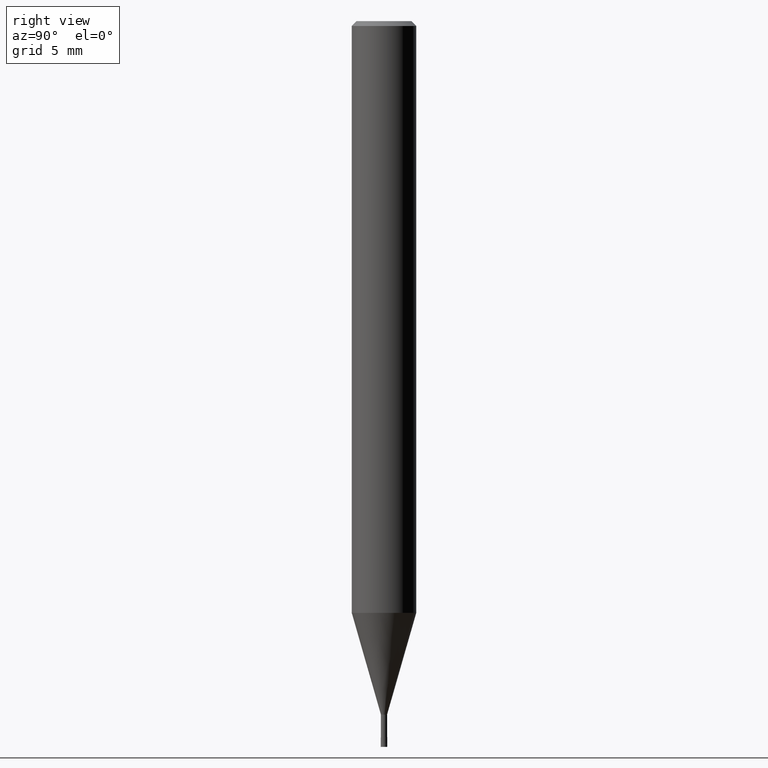
[diagram: clean part render]
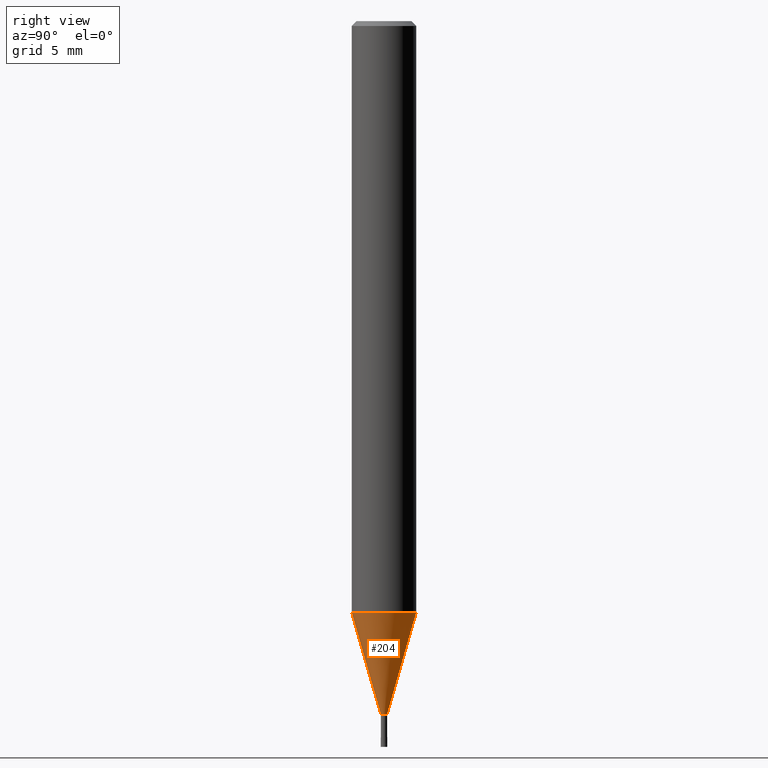
[diagram: same view with one face highlighted and labeled with its STEP entity id]
A machine part, right view. The second image highlights one B-rep face of the part: STEP entity #204.
In plain terms, the highlighted conical surface has half-angle 16.001 deg.
Its self-contained STEP definition (entity closure, byte-faithful):
#102=EDGE_CURVE('',#122,#182,#240,.T.);
#122=VERTEX_POINT('',#265);
#134=EDGE_CURVE('',#192,#180,#277,.T.);
#156=EDGE_CURVE('',#192,#182,#303,.T.);
#158=EDGE_CURVE('',#180,#122,#305,.T.);
#180=VERTEX_POINT('',#329);
#182=VERTEX_POINT('',#331);
#192=VERTEX_POINT('',#342);
#204=ADVANCED_FACE('',(#356),#357,.T.);
#240=LINE('',#387,#388);
#265=CARTESIAN_POINT('',(2.3261397690856E-017,-0.18995,-43.0));
#277=LINE('',#439,#440);
#303=CIRCLE('',#470,1.99995);
#305=CIRCLE('',#473,0.18995);
#329=CARTESIAN_POINT('',(0.0,0.18995,-43.0));
#331=CARTESIAN_POINT('',(2.44915147732706E-016,-1.99995,-36.688));
#342=CARTESIAN_POINT('',(0.0,1.99995,-36.688));
#356=FACE_OUTER_BOUND('',#535,.T.);
#357=CONICAL_SURFACE('',#536,1.09495,0.279261921280279);
#387=CARTESIAN_POINT('',(1.34088272711781E-016,-1.09495,-39.844));
#388=VECTOR('',#557,1.0);
#439=CARTESIAN_POINT('',(-1.34088272711781E-016,1.09495,-39.844));
#440=VECTOR('',#605,1.0);
#470=AXIS2_PLACEMENT_3D('',#640,#641,#642);
#473=AXIS2_PLACEMENT_3D('',#643,#644,#645);
#535=EDGE_LOOP('',(#707,#708,#709,#710));
#536=AXIS2_PLACEMENT_3D('',#711,#712,#713);
#557=DIRECTION('',(3.37558135426109E-017,-0.275646238787252,0.961259148743169));
#605=DIRECTION('',(3.37558135426109E-017,-0.275646238787252,-0.961259148743169));
#640=CARTESIAN_POINT('',(0.0,0.0,-36.688));
#641=DIRECTION('',(0.0,0.0,-1.0));
#642=DIRECTION('',(0.0,1.0,0.0));
#643=CARTESIAN_POINT('',(0.0,0.0,-43.0));
#644=DIRECTION('',(0.0,0.0,-1.0));
#645=DIRECTION('',(0.0,1.0,0.0));
#707=ORIENTED_EDGE('',*,*,#134,.F.);
#708=ORIENTED_EDGE('',*,*,#156,.T.);
#709=ORIENTED_EDGE('',*,*,#102,.F.);
#710=ORIENTED_EDGE('',*,*,#158,.F.);
#711=CARTESIAN_POINT('',(0.0,0.0,-39.844));
#712=DIRECTION('',(-0.0,-0.0,1.0));
#713=DIRECTION('',(0.0,1.0,0.0));